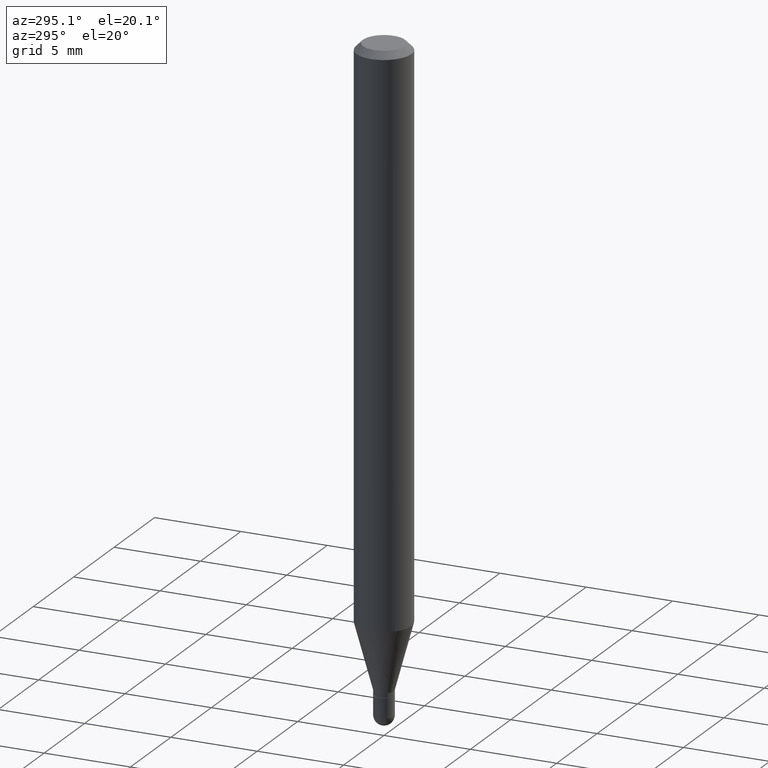
[diagram: clean part render]
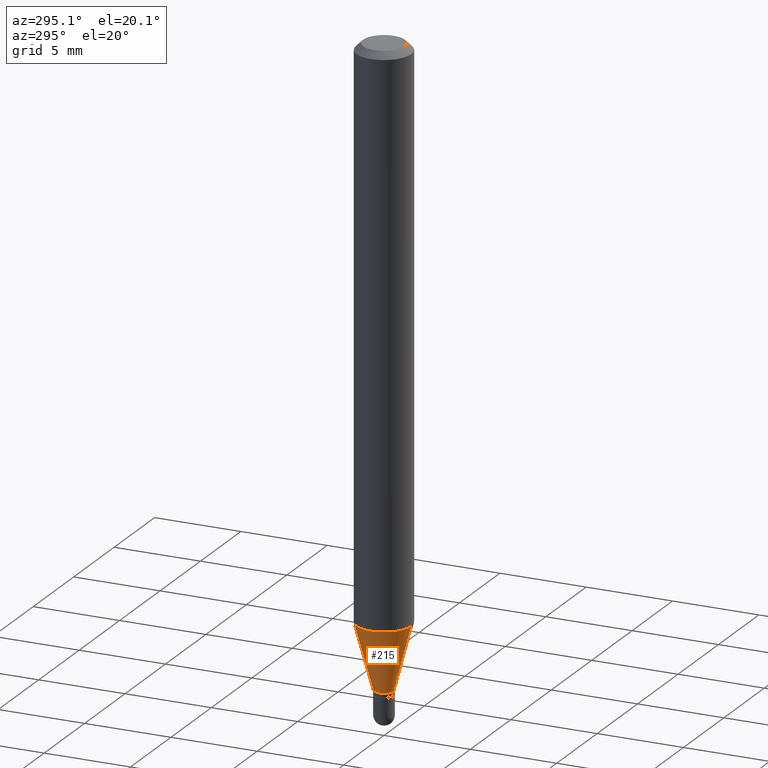
[diagram: same view with one face highlighted and labeled with its STEP entity id]
A machine part, auxiliary view. The second image highlights one B-rep face of the part: STEP entity #215.
In plain terms, the highlighted conical surface has half-angle 15 deg.
Its self-contained STEP definition (entity closure, byte-faithful):
#16 = VERTEX_POINT ( 'NONE', #113 ) ;
#21 = DIRECTION ( 'NONE',  ( -2.445467008868060164E-29, 3.491483912703496307E-15, 1.000000000000000000 ) ) ;
#26 = CARTESIAN_POINT ( 'NONE',  ( 3.477454086610382220E-29, -4.964890123864371696E-15, -1.421999999999999931 ) ) ;
#41 = CARTESIAN_POINT ( 'NONE',  ( 3.112389801597218534E-29, -4.443674309623619373E-15, -1.272717967697245101 ) ) ;
#47 = CONICAL_SURFACE ( 'NONE', #384, 0.02249999999999992284, 0.2617993877991501850 ) ;
#48 = VECTOR ( 'NONE', #200, 39.37007874015748143 ) ;
#56 = EDGE_CURVE ( 'NONE', #199, #489, #182, .T. ) ;
#60 = EDGE_CURVE ( 'NONE', #16, #199, #123, .T. ) ;
#61 = ORIENTED_EDGE ( 'NONE', *, *, #347, .F. ) ;
#66 = CARTESIAN_POINT ( 'NONE',  ( -1.571166602479056403E-16, -0.02250000000000488762, -1.421999999999999931 ) ) ;
#67 = VERTEX_POINT ( 'NONE', #329 ) ;
#113 = CARTESIAN_POINT ( 'NONE',  ( 3.019806626980753384E-16, 0.02249999999999496153, -1.421999999999999931 ) ) ;
#114 = DIRECTION ( 'NONE',  ( -2.445467008868060164E-29, 3.491483912703496307E-15, 1.000000000000000000 ) ) ;
#123 = CIRCLE ( 'NONE', #493, 0.02249999999999992284 ) ;
#159 = FACE_OUTER_BOUND ( 'NONE', #424, .T. ) ;
#179 = ORIENTED_EDGE ( 'NONE', *, *, #60, .T. ) ;
#182 = LINE ( 'NONE', #66, #410 ) ;
#199 = VERTEX_POINT ( 'NONE', #235 ) ;
#200 = DIRECTION ( 'NONE',  ( 1.839019923739599526E-15, 0.2588190451025248473, 0.9659258262890670910 ) ) ;
#205 = CARTESIAN_POINT ( 'NONE',  ( -4.364351673553605587E-16, -0.06250000000000446865, -1.272717967697244879 ) ) ;
#213 = DIRECTION ( 'NONE',  ( -2.445467008868060164E-29, 3.491483912703496307E-15, 1.000000000000000000 ) ) ;
#215 = ADVANCED_FACE ( 'NONE', ( #159 ), #47, .T. ) ;
#231 = ORIENTED_EDGE ( 'NONE', *, *, #309, .F. ) ;
#235 = CARTESIAN_POINT ( 'NONE',  ( -1.571166602479056403E-16, -0.02250000000000488762, -1.421999999999999931 ) ) ;
#257 = ORIENTED_EDGE ( 'NONE', *, *, #56, .T. ) ;
#264 = CARTESIAN_POINT ( 'NONE',  ( 3.477454086610382220E-29, -4.964890123864371696E-15, -1.421999999999999931 ) ) ;
#271 = DIRECTION ( 'NONE',  ( -6.982962677686265133E-15, -1.000000000000000000, 0.000000000000000000 ) ) ;
#309 = EDGE_CURVE ( 'NONE', #67, #489, #432, .T. ) ;
#326 = DIRECTION ( 'NONE',  ( -1.807323732225329350E-15, -0.2588190451025180194, 0.9659258262890689783 ) ) ;
#329 = CARTESIAN_POINT ( 'NONE',  ( 4.440892098500934804E-16, 0.06249999999999552441, -1.272717967697245323 ) ) ;
#331 = AXIS2_PLACEMENT_3D ( 'NONE', #41, #213, #395 ) ;
#332 = DIRECTION ( 'NONE',  ( -6.982962677686265133E-15, -1.000000000000000000, 0.000000000000000000 ) ) ;
#347 = EDGE_CURVE ( 'NONE', #16, #67, #430, .T. ) ;
#384 = AXIS2_PLACEMENT_3D ( 'NONE', #26, #114, #271 ) ;
#395 = DIRECTION ( 'NONE',  ( -6.982962677686265922E-15, -1.000000000000000000, 4.370956789862821150E-15 ) ) ;
#410 = VECTOR ( 'NONE', #326, 39.37007874015749564 ) ;
#424 = EDGE_LOOP ( 'NONE', ( #61, #179, #257, #231 ) ) ;
#430 = LINE ( 'NONE', #504, #48 ) ;
#432 = CIRCLE ( 'NONE', #331, 0.06250000000000000000 ) ;
#489 = VERTEX_POINT ( 'NONE', #205 ) ;
#493 = AXIS2_PLACEMENT_3D ( 'NONE', #264, #21, #332 ) ;
#504 = CARTESIAN_POINT ( 'NONE',  ( 1.598721155460567527E-16, 0.02249999999999495806, -1.421999999999999931 ) ) ;